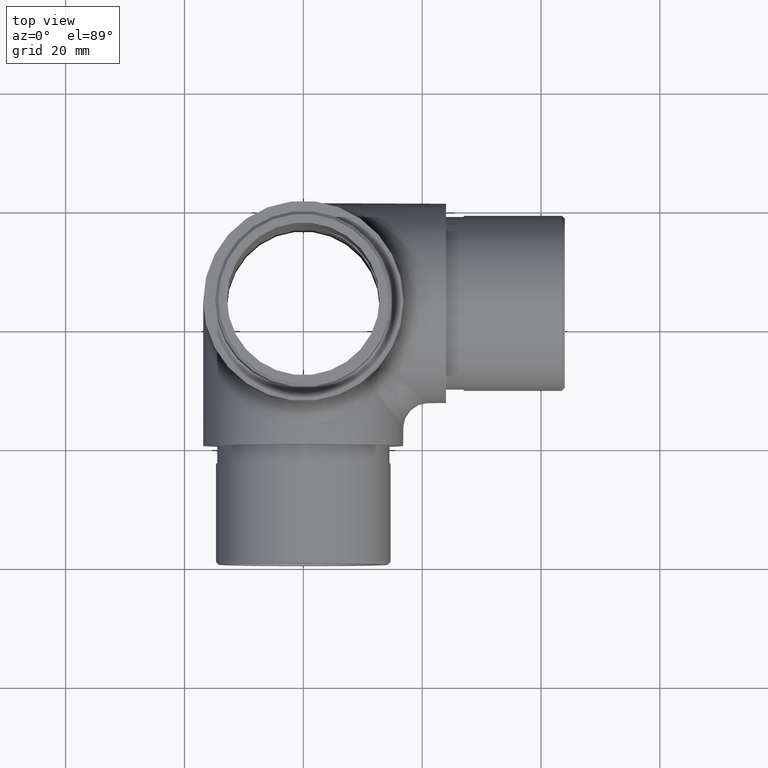
[diagram: clean part render]
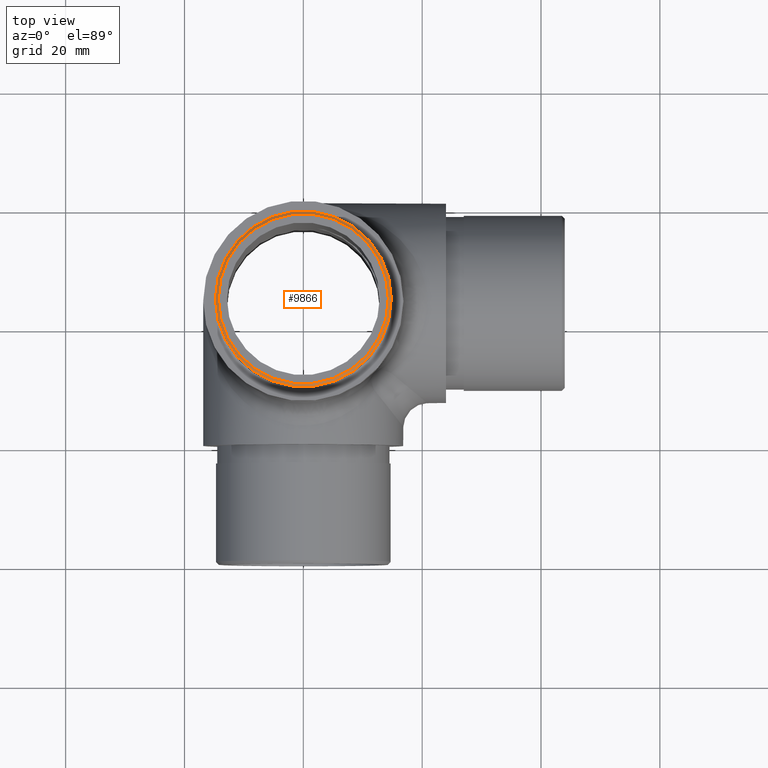
[diagram: same view with one face highlighted and labeled with its STEP entity id]
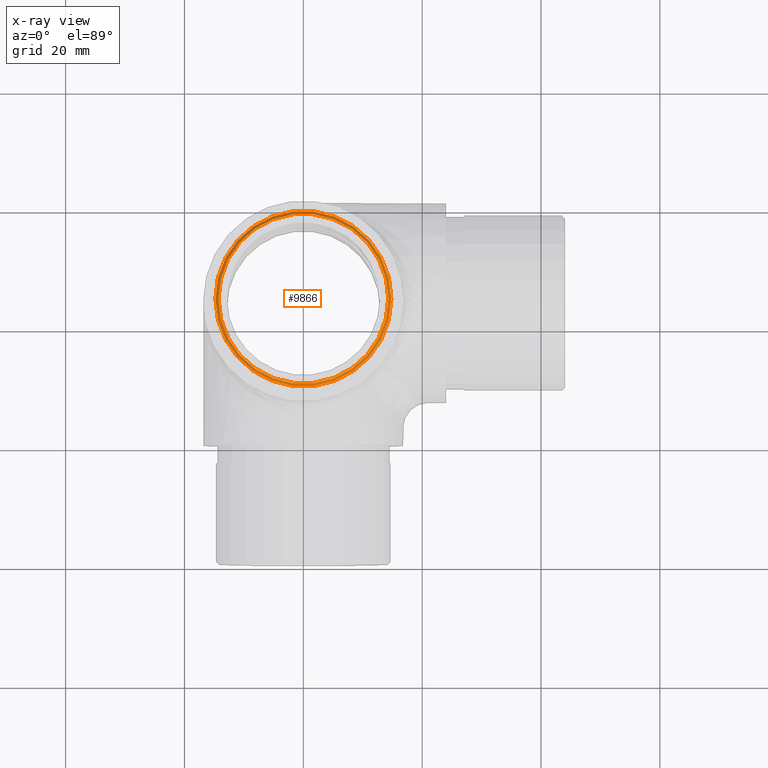
[diagram: x-ray of the same camera — body ghosted, the highlighted face saturated]
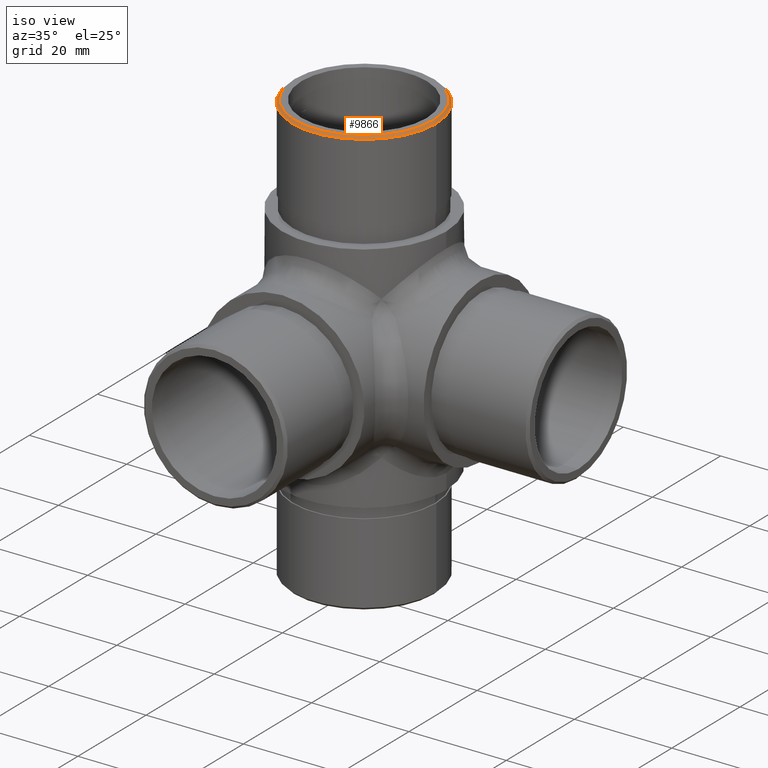
[diagram: same view with one face highlighted and labeled with its STEP entity id]
A machine part, top view. The second image highlights one B-rep face of the part: STEP entity #9866.
The next image is the same camera in x-ray: the body ghosted, the highlighted face saturated — about 0% of this face is hidden behind the body in this view.
A second angle (iso view) of the same face is appended — the face is thin or edge-on in the first view.
In plain terms, the highlighted conical surface has half-angle 45 deg.
Its self-contained STEP definition (entity closure, byte-faithful):
#127 = FACE_BOUND ( 'NONE', #3504, .T. ) ;
#656 = DIRECTION ( 'NONE',  ( 0.0000000000000000000, 0.0000000000000000000, -1.000000000000000000 ) ) ;
#903 = VERTEX_POINT ( 'NONE', #7897 ) ;
#979 = CARTESIAN_POINT ( 'NONE',  ( 0.0000000000000000000, 44.00000000000000000, 43.50000000000000000 ) ) ;
#1899 = CONICAL_SURFACE ( 'NONE', #5869, 14.30000000000000800, 0.7853981633974396200 ) ;
#3504 = EDGE_LOOP ( 'NONE', ( #9290 ) ) ;
#3646 = DIRECTION ( 'NONE',  ( 0.0000000000000000000, 0.0000000000000000000, 1.000000000000000000 ) ) ;
#5048 = DIRECTION ( 'NONE',  ( 0.0000000000000000000, 0.0000000000000000000, -1.000000000000000000 ) ) ;
#5339 = CIRCLE ( 'NONE', #8543, 14.30000000000000800 ) ;
#5715 = EDGE_CURVE ( 'NONE', #903, #903, #5339, .T. ) ;
#5757 = FACE_OUTER_BOUND ( 'NONE', #10909, .T. ) ;
#5869 = AXIS2_PLACEMENT_3D ( 'NONE', #6821, #656, #7918 ) ;
#6714 = EDGE_CURVE ( 'NONE', #11395, #11395, #7080, .T. ) ;
#6821 = CARTESIAN_POINT ( 'NONE',  ( 0.0000000000000000000, 44.00000000000000000, 44.00000000000000000 ) ) ;
#7080 = CIRCLE ( 'NONE', #11691, 14.79999999999999900 ) ;
#7843 = CARTESIAN_POINT ( 'NONE',  ( 14.79999999999999900, 44.00000000000000000, 43.50000000000000000 ) ) ;
#7897 = CARTESIAN_POINT ( 'NONE',  ( 14.30000000000000800, 44.00000000000000000, 44.00000000000000000 ) ) ;
#7918 = DIRECTION ( 'NONE',  ( -1.000000000000000000, 0.0000000000000000000, 0.0000000000000000000 ) ) ;
#8226 = ORIENTED_EDGE ( 'NONE', *, *, #6714, .F. ) ;
#8240 = DIRECTION ( 'NONE',  ( 1.000000000000000000, 0.0000000000000000000, 0.0000000000000000000 ) ) ;
#8543 = AXIS2_PLACEMENT_3D ( 'NONE', #9785, #3646, #10844 ) ;
#9290 = ORIENTED_EDGE ( 'NONE', *, *, #5715, .F. ) ;
#9785 = CARTESIAN_POINT ( 'NONE',  ( 0.0000000000000000000, 44.00000000000000000, 44.00000000000000000 ) ) ;
#9866 = ADVANCED_FACE ( 'NONE', ( #5757, #127 ), #1899, .T. ) ;
#10844 = DIRECTION ( 'NONE',  ( 1.000000000000000000, 0.0000000000000000000, 0.0000000000000000000 ) ) ;
#10909 = EDGE_LOOP ( 'NONE', ( #8226 ) ) ;
#11395 = VERTEX_POINT ( 'NONE', #7843 ) ;
#11691 = AXIS2_PLACEMENT_3D ( 'NONE', #979, #5048, #8240 ) ;